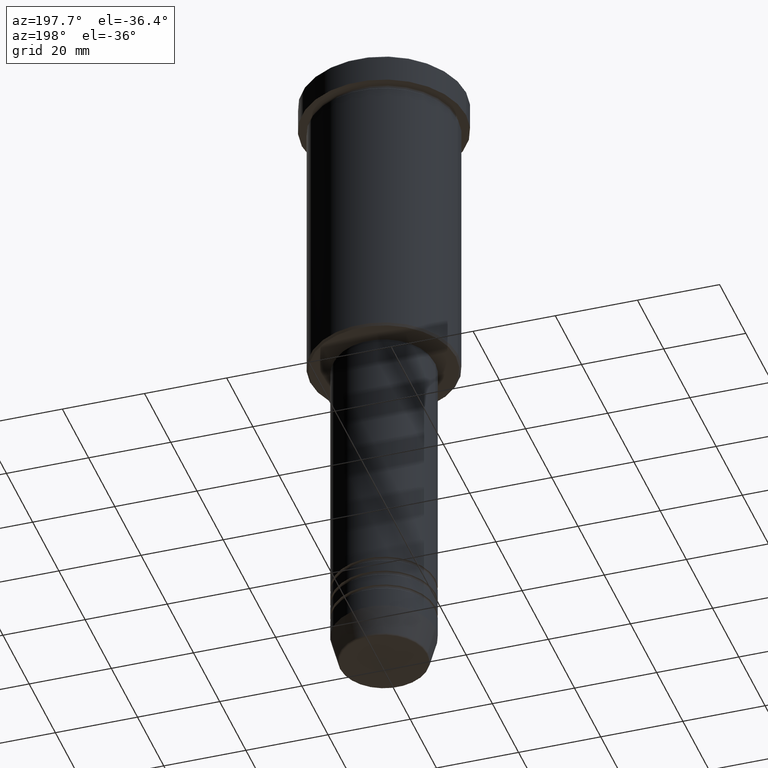
[diagram: clean part render]
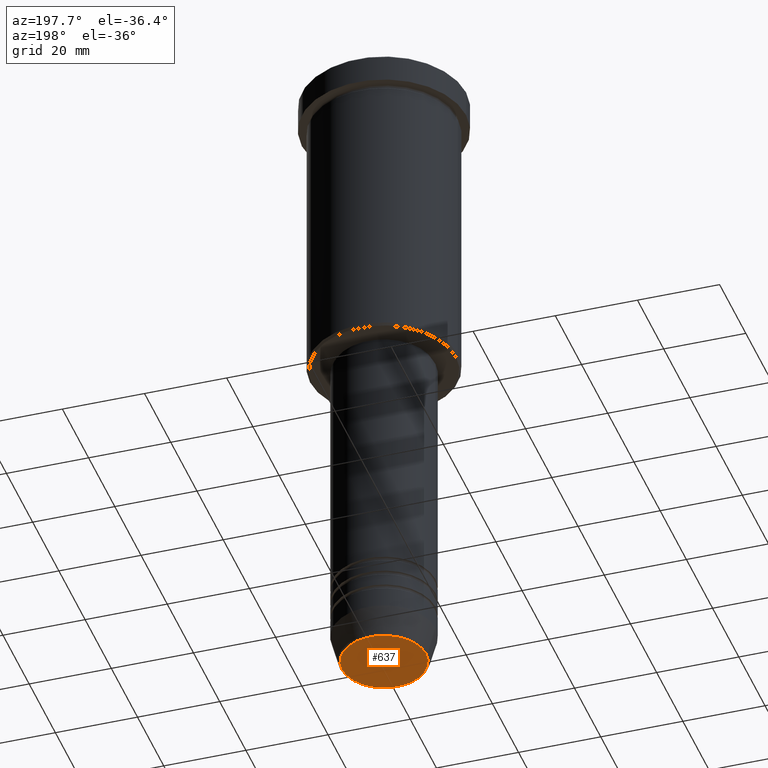
[diagram: same view with one face highlighted and labeled with its STEP entity id]
A machine part, auxiliary view. The second image highlights one B-rep face of the part: STEP entity #637.
In plain terms, the highlighted planar face has unit normal (0, -0, 1).
Its self-contained STEP definition (entity closure, byte-faithful):
#2 = VERTEX_POINT ( 'NONE', #827 ) ;
#25 = FACE_OUTER_BOUND ( 'NONE', #1031, .T. ) ;
#36 = CARTESIAN_POINT ( 'NONE',  ( 0.000000000000000000, 0.000000000000000000, -160.0000000000000284 ) ) ;
#107 = DIRECTION ( 'NONE',  ( 1.000000000000000000, 0.000000000000000000, 0.000000000000000000 ) ) ;
#187 = CARTESIAN_POINT ( 'NONE',  ( -10.24069215899265650, 1.283696036640842573E-15, -160.0000000000000284 ) ) ;
#331 = CIRCLE ( 'NONE', #757, 10.24069215899265650 ) ;
#386 = PLANE ( 'NONE',  #518 ) ;
#507 = VERTEX_POINT ( 'NONE', #187 ) ;
#515 = EDGE_CURVE ( 'NONE', #507, #2, #331, .T. ) ;
#518 = AXIS2_PLACEMENT_3D ( 'NONE', #749, #664, #107 ) ;
#589 = CIRCLE ( 'NONE', #836, 10.24069215899265650 ) ;
#637 = ADVANCED_FACE ( 'NONE', ( #25 ), #386, .F. ) ;
#664 = DIRECTION ( 'NONE',  ( 0.000000000000000000, -0.000000000000000000, 1.000000000000000000 ) ) ;
#749 = CARTESIAN_POINT ( 'NONE',  ( 0.000000000000000000, 0.000000000000000000, -160.0000000000000284 ) ) ;
#757 = AXIS2_PLACEMENT_3D ( 'NONE', #912, #946, #1142 ) ;
#827 = CARTESIAN_POINT ( 'NONE',  ( 10.24069215899265650, 0.000000000000000000, -160.0000000000000284 ) ) ;
#836 = AXIS2_PLACEMENT_3D ( 'NONE', #36, #1150, #1039 ) ;
#845 = ORIENTED_EDGE ( 'NONE', *, *, #515, .T. ) ;
#892 = EDGE_CURVE ( 'NONE', #2, #507, #589, .T. ) ;
#912 = CARTESIAN_POINT ( 'NONE',  ( 0.000000000000000000, 0.000000000000000000, -160.0000000000000284 ) ) ;
#946 = DIRECTION ( 'NONE',  ( 0.000000000000000000, 0.000000000000000000, -1.000000000000000000 ) ) ;
#1031 = EDGE_LOOP ( 'NONE', ( #1183, #845 ) ) ;
#1039 = DIRECTION ( 'NONE',  ( 1.000000000000000000, 0.000000000000000000, 0.000000000000000000 ) ) ;
#1142 = DIRECTION ( 'NONE',  ( 1.000000000000000000, 0.000000000000000000, 0.000000000000000000 ) ) ;
#1150 = DIRECTION ( 'NONE',  ( 0.000000000000000000, 0.000000000000000000, -1.000000000000000000 ) ) ;
#1183 = ORIENTED_EDGE ( 'NONE', *, *, #892, .T. ) ;